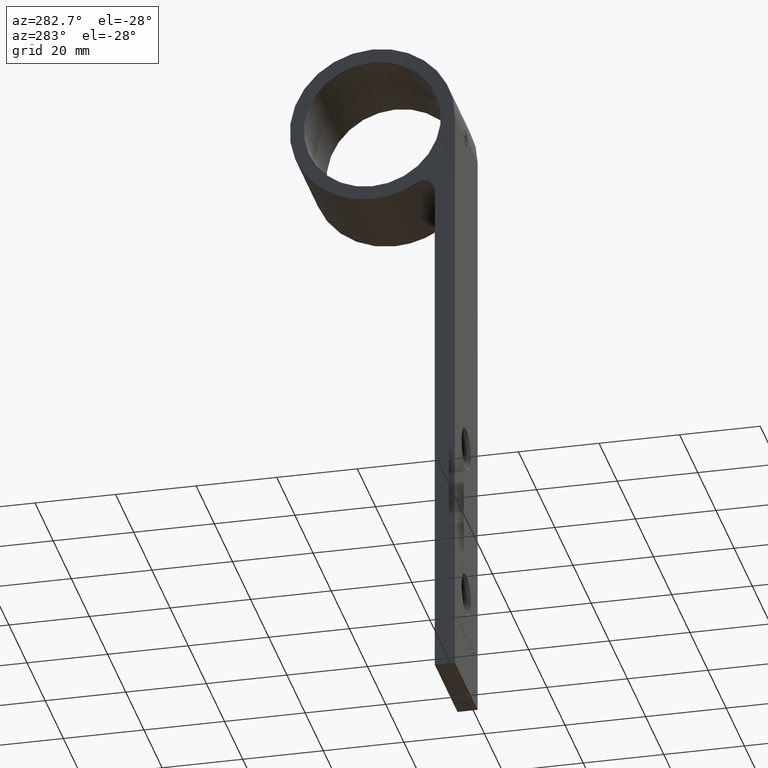
[diagram: clean part render]
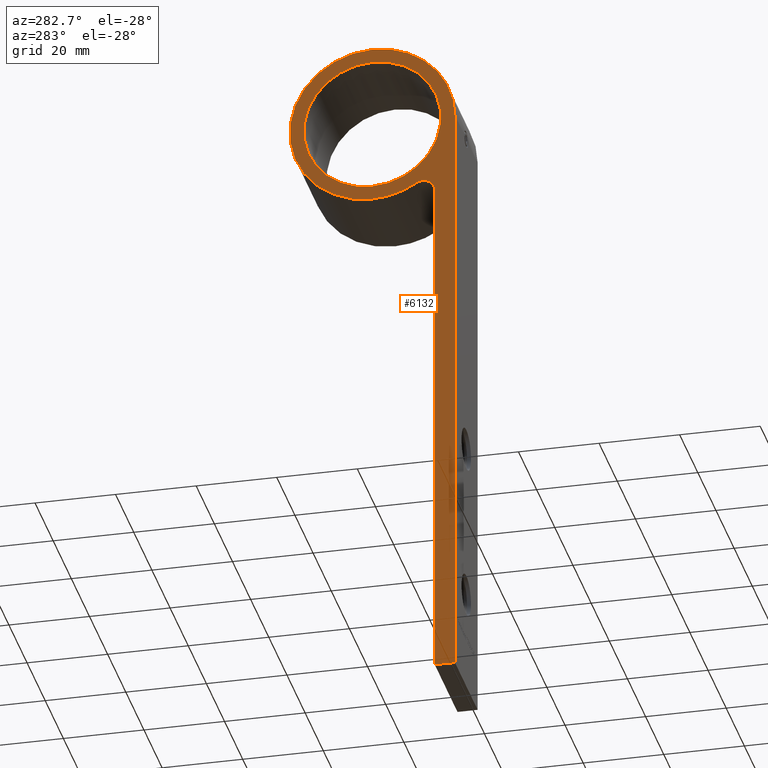
[diagram: same view with one face highlighted and labeled with its STEP entity id]
A machine part, auxiliary view. The second image highlights one B-rep face of the part: STEP entity #6132.
In plain terms, the highlighted planar face has unit normal (1, 0, 0).
Its self-contained STEP definition (entity closure, byte-faithful):
#42 = AXIS2_PLACEMENT_3D ( 'NONE', #10914, #1036, #4238 ) ;
#201 = ORIENTED_EDGE ( 'NONE', *, *, #12245, .F. ) ;
#439 = DIRECTION ( 'NONE',  ( 0.0000000000000000000, 0.0000000000000000000, -1.000000000000000000 ) ) ;
#685 = VERTEX_POINT ( 'NONE', #10700 ) ;
#871 = VERTEX_POINT ( 'NONE', #4909 ) ;
#951 = AXIS2_PLACEMENT_3D ( 'NONE', #2774, #3730, #439 ) ;
#1036 = DIRECTION ( 'NONE',  ( 1.000000000000000000, 0.0000000000000000000, 0.0000000000000000000 ) ) ;
#2016 = DIRECTION ( 'NONE',  ( 1.000000000000000000, 0.0000000000000000000, 0.0000000000000000000 ) ) ;
#2551 = CARTESIAN_POINT ( 'NONE',  ( -12.50000000000000000, 5.000000000000000000, -150.0000000000000000 ) ) ;
#2681 = AXIS2_PLACEMENT_3D ( 'NONE', #5768, #6898, #11391 ) ;
#2731 = CIRCLE ( 'NONE', #2681, 20.50000000000000000 ) ;
#2774 = CARTESIAN_POINT ( 'NONE',  ( -12.50000000000000000, 20.50000000000000000, 0.0000000000000000000 ) ) ;
#2800 = LINE ( 'NONE', #4420, #12028 ) ;
#3052 = CARTESIAN_POINT ( 'NONE',  ( -12.50000000000000000, 20.50000000000000000, 17.00000000000000000 ) ) ;
#3085 = DIRECTION ( 'NONE',  ( 0.0000000000000000000, 0.0000000000000000000, -1.000000000000000000 ) ) ;
#3177 = CARTESIAN_POINT ( 'NONE',  ( -12.50000000000000000, 20.50000000000000000, 0.0000000000000000000 ) ) ;
#3479 = AXIS2_PLACEMENT_3D ( 'NONE', #3177, #2016, #3085 ) ;
#3730 = DIRECTION ( 'NONE',  ( 1.000000000000000000, 0.0000000000000000000, 0.0000000000000000000 ) ) ;
#3859 = CARTESIAN_POINT ( 'NONE',  ( -12.50000000000000000, 7.999999999999983100, -19.89974874213238500 ) ) ;
#3992 = CARTESIAN_POINT ( 'NONE',  ( -12.50000000000000000, 9.595744680851046500, -17.35935528568995400 ) ) ;
#4145 = CARTESIAN_POINT ( 'NONE',  ( -12.50000000000000000, 20.50000000000000000, 0.0000000000000000000 ) ) ;
#4166 = CIRCLE ( 'NONE', #3479, 20.50000000000000000 ) ;
#4238 = DIRECTION ( 'NONE',  ( 0.0000000000000000000, 0.0000000000000000000, -1.000000000000000000 ) ) ;
#4273 = DIRECTION ( 'NONE',  ( -0.0000000000000000000, -0.0000000000000000000, -1.000000000000000000 ) ) ;
#4388 = EDGE_CURVE ( 'NONE', #4619, #871, #8178, .T. ) ;
#4420 = CARTESIAN_POINT ( 'NONE',  ( -12.50000000000000000, 0.0000000000000000000, -150.0000000000000000 ) ) ;
#4499 = DIRECTION ( 'NONE',  ( -0.0000000000000000000, 1.000000000000000000, -0.0000000000000000000 ) ) ;
#4619 = VERTEX_POINT ( 'NONE', #3052 ) ;
#4666 = VERTEX_POINT ( 'NONE', #7457 ) ;
#4730 = DIRECTION ( 'NONE',  ( 1.000000000000000000, 0.0000000000000000000, 0.0000000000000000000 ) ) ;
#4735 = CARTESIAN_POINT ( 'NONE',  ( -12.50000000000000000, 20.50000000000000000, 0.0000000000000000000 ) ) ;
#4836 = CARTESIAN_POINT ( 'NONE',  ( -12.50000000000000000, 20.50000000000000400, -20.50000000000000000 ) ) ;
#4838 = CARTESIAN_POINT ( 'NONE',  ( -12.50000000000000000, 5.000000000000000000, -150.0000000000000000 ) ) ;
#4909 = CARTESIAN_POINT ( 'NONE',  ( -12.50000000000000000, 20.50000000000000400, -17.00000000000000000 ) ) ;
#5032 = FACE_BOUND ( 'NONE', #9359, .T. ) ;
#5037 = VERTEX_POINT ( 'NONE', #7763 ) ;
#5107 = EDGE_CURVE ( 'NONE', #12041, #8835, #6624, .T. ) ;
#5228 = EDGE_CURVE ( 'NONE', #685, #4666, #12549, .T. ) ;
#5399 = ORIENTED_EDGE ( 'NONE', *, *, #5228, .T. ) ;
#5636 = CARTESIAN_POINT ( 'NONE',  ( -12.50000000000000000, 0.0000000000000000000, -150.0000000000000000 ) ) ;
#5768 = CARTESIAN_POINT ( 'NONE',  ( -12.50000000000000000, 20.50000000000000000, 0.0000000000000000000 ) ) ;
#6132 = ADVANCED_FACE ( 'NONE', ( #8038, #5032 ), #8518, .F. ) ;
#6202 = ORIENTED_EDGE ( 'NONE', *, *, #7187, .F. ) ;
#6325 = EDGE_CURVE ( 'NONE', #12041, #685, #9221, .T. ) ;
#6346 = ORIENTED_EDGE ( 'NONE', *, *, #4388, .T. ) ;
#6412 = EDGE_LOOP ( 'NONE', ( #12382, #6202, #201, #13902, #10767, #10342, #5399, #7896 ) ) ;
#6560 = LINE ( 'NONE', #2551, #11114 ) ;
#6581 = AXIS2_PLACEMENT_3D ( 'NONE', #4735, #11595, #10445 ) ;
#6624 = CIRCLE ( 'NONE', #6581, 20.50000000000000000 ) ;
#6714 = VECTOR ( 'NONE', #10280, 1000.000000000000000 ) ;
#6898 = DIRECTION ( 'NONE',  ( 1.000000000000000000, 0.0000000000000000000, 0.0000000000000000000 ) ) ;
#7011 = DIRECTION ( 'NONE',  ( 0.0000000000000000000, 0.0000000000000000000, -1.000000000000000000 ) ) ;
#7097 = EDGE_CURVE ( 'NONE', #871, #4619, #7289, .T. ) ;
#7187 = EDGE_CURVE ( 'NONE', #5037, #9162, #2800, .T. ) ;
#7289 = CIRCLE ( 'NONE', #10285, 17.00000000000000000 ) ;
#7295 = DIRECTION ( 'NONE',  ( 0.0000000000000000000, 0.0000000000000000000, -1.000000000000000000 ) ) ;
#7457 = CARTESIAN_POINT ( 'NONE',  ( -12.50000000000000000, 4.999999999999983100, -19.89974874213237800 ) ) ;
#7763 = CARTESIAN_POINT ( 'NONE',  ( -12.50000000000000000, 0.0000000000000000000, 0.0000000000000000000 ) ) ;
#7886 = EDGE_CURVE ( 'NONE', #8835, #13035, #4166, .T. ) ;
#7896 = ORIENTED_EDGE ( 'NONE', *, *, #11509, .F. ) ;
#8038 = FACE_OUTER_BOUND ( 'NONE', #6412, .T. ) ;
#8178 = CIRCLE ( 'NONE', #951, 17.00000000000000000 ) ;
#8374 = DIRECTION ( 'NONE',  ( 1.000000000000000000, 0.0000000000000000000, 0.0000000000000000000 ) ) ;
#8518 = PLANE ( 'NONE',  #12477 ) ;
#8656 = VERTEX_POINT ( 'NONE', #9472 ) ;
#8835 = VERTEX_POINT ( 'NONE', #4836 ) ;
#9107 = AXIS2_PLACEMENT_3D ( 'NONE', #3859, #9432, #7295 ) ;
#9162 = VERTEX_POINT ( 'NONE', #5636 ) ;
#9221 = CIRCLE ( 'NONE', #42, 2.999999999999999100 ) ;
#9359 = EDGE_LOOP ( 'NONE', ( #6346, #13336 ) ) ;
#9432 = DIRECTION ( 'NONE',  ( 1.000000000000000000, 0.0000000000000000000, 0.0000000000000000000 ) ) ;
#9472 = CARTESIAN_POINT ( 'NONE',  ( -12.50000000000000000, 5.000000000000000000, -150.0000000000000000 ) ) ;
#9684 = DIRECTION ( 'NONE',  ( 0.0000000000000000000, 0.0000000000000000000, -1.000000000000000000 ) ) ;
#9941 = EDGE_CURVE ( 'NONE', #9162, #8656, #6560, .T. ) ;
#10280 = DIRECTION ( 'NONE',  ( 0.0000000000000000000, -1.333585990310819800E-016, 1.000000000000000000 ) ) ;
#10285 = AXIS2_PLACEMENT_3D ( 'NONE', #13657, #4730, #7011 ) ;
#10342 = ORIENTED_EDGE ( 'NONE', *, *, #6325, .T. ) ;
#10445 = DIRECTION ( 'NONE',  ( 0.0000000000000000000, 0.0000000000000000000, -1.000000000000000000 ) ) ;
#10700 = CARTESIAN_POINT ( 'NONE',  ( -12.50000000000000000, 7.999999999999983100, -16.89974874213238500 ) ) ;
#10767 = ORIENTED_EDGE ( 'NONE', *, *, #5107, .F. ) ;
#10914 = CARTESIAN_POINT ( 'NONE',  ( -12.50000000000000000, 7.999999999999983100, -19.89974874213238500 ) ) ;
#11114 = VECTOR ( 'NONE', #4499, 1000.000000000000000 ) ;
#11391 = DIRECTION ( 'NONE',  ( 0.0000000000000000000, 0.0000000000000000000, -1.000000000000000000 ) ) ;
#11433 = LINE ( 'NONE', #4838, #6714 ) ;
#11509 = EDGE_CURVE ( 'NONE', #8656, #4666, #11433, .T. ) ;
#11595 = DIRECTION ( 'NONE',  ( 1.000000000000000000, 0.0000000000000000000, 0.0000000000000000000 ) ) ;
#12028 = VECTOR ( 'NONE', #4273, 1000.000000000000000 ) ;
#12041 = VERTEX_POINT ( 'NONE', #3992 ) ;
#12245 = EDGE_CURVE ( 'NONE', #13035, #5037, #2731, .T. ) ;
#12382 = ORIENTED_EDGE ( 'NONE', *, *, #9941, .F. ) ;
#12477 = AXIS2_PLACEMENT_3D ( 'NONE', #4145, #8374, #9684 ) ;
#12549 = CIRCLE ( 'NONE', #9107, 2.999999999999999100 ) ;
#13035 = VERTEX_POINT ( 'NONE', #13172 ) ;
#13172 = CARTESIAN_POINT ( 'NONE',  ( -12.50000000000000000, 20.50000000000000000, 20.50000000000000000 ) ) ;
#13336 = ORIENTED_EDGE ( 'NONE', *, *, #7097, .T. ) ;
#13657 = CARTESIAN_POINT ( 'NONE',  ( -12.50000000000000000, 20.50000000000000000, 0.0000000000000000000 ) ) ;
#13902 = ORIENTED_EDGE ( 'NONE', *, *, #7886, .F. ) ;